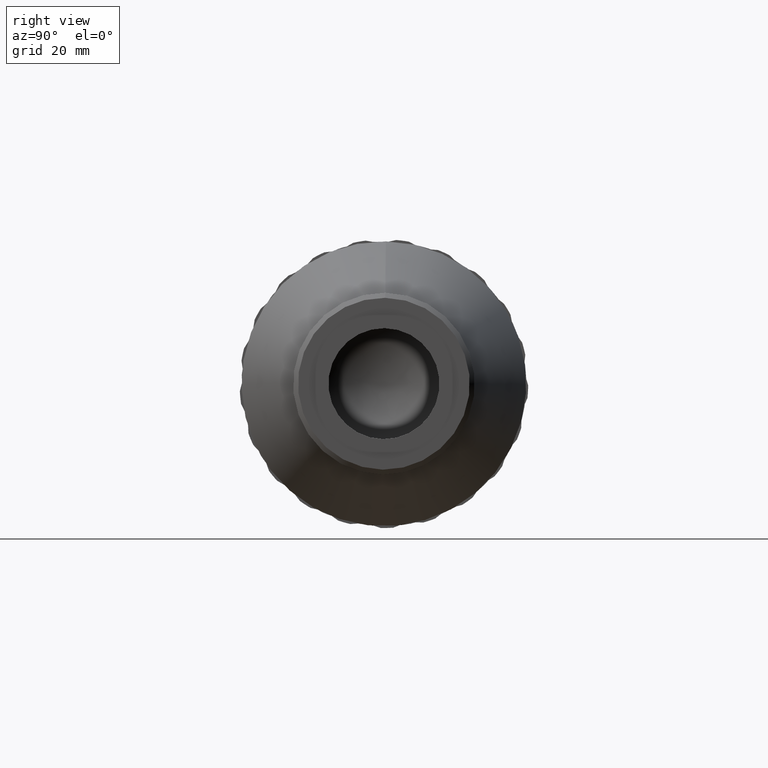
[diagram: clean part render]
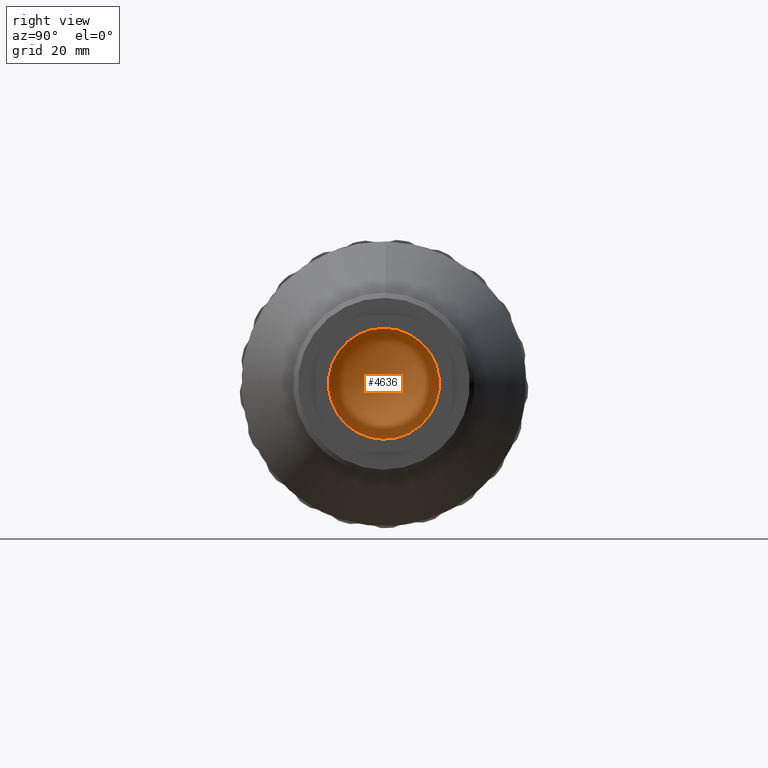
[diagram: same view with one face highlighted and labeled with its STEP entity id]
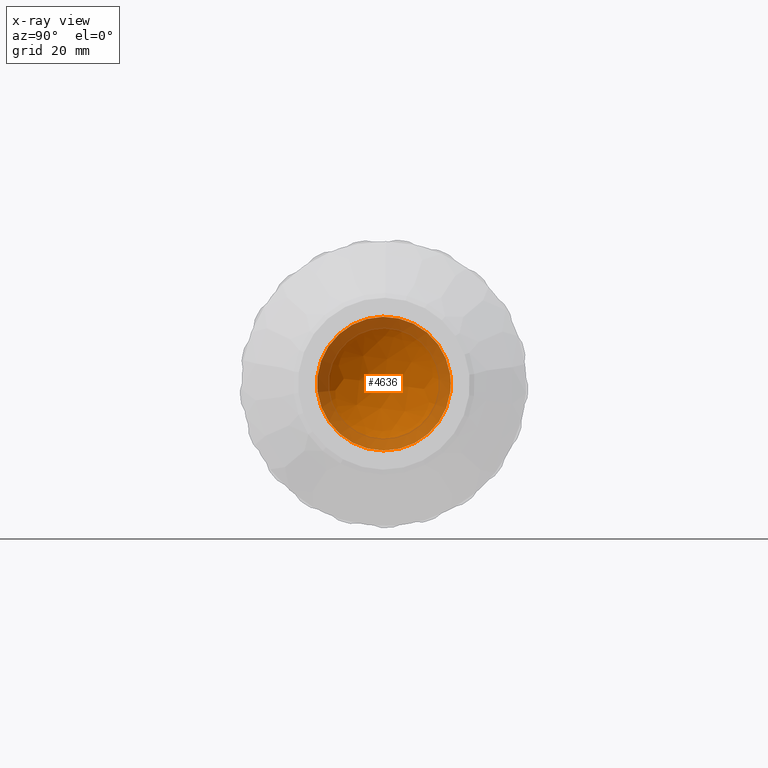
[diagram: x-ray of the same camera — body ghosted, the highlighted face saturated]
A machine part, right view. The second image highlights one B-rep face of the part: STEP entity #4636.
The next image is the same camera in x-ray: the body ghosted, the highlighted face saturated — about 31% of this face is hidden behind the body in this view.
In plain terms, the highlighted face is a freeform B-spline surface patch.
Its self-contained STEP definition (entity closure, byte-faithful):
#76 = CARTESIAN_POINT ( 'NONE',  ( 20.79694076628485888, 14.75551516856130085, 117.7459716523386248 ) ) ;
#118 = CARTESIAN_POINT ( 'NONE',  ( 24.75481877057790925, 19.28229249259254274, 141.1737036671693488 ) ) ;
#129 = CARTESIAN_POINT ( 'NONE',  ( 20.79694076628486243, 9.877274918261335301, 115.7512819956742618 ) ) ;
#150 = CARTESIAN_POINT ( 'NONE',  ( 20.79694076628505783, 4.608843262605512692, 115.7528891539403446 ) ) ;
#164 = CARTESIAN_POINT ( 'NONE',  ( 19.41052477261217035, -6.930980288724769345, 136.3244366917483319 ) ) ;
#175 = CARTESIAN_POINT ( 'NONE',  ( 20.79694076628487309, 19.15262240539266259, 122.6195330048044099 ) ) ;
#198 = CARTESIAN_POINT ( 'NONE',  ( 20.79694076628486243, 18.49510659127679446, 136.5176368601314323 ) ) ;
#219 = CARTESIAN_POINT ( 'NONE',  ( 20.79694076628486954, 20.77670692911026507, 128.9961268867075148 ) ) ;
#379 = ORIENTED_EDGE ( 'NONE', *, *, #4344, .F. ) ;
#398 = B_SPLINE_CURVE_WITH_KNOTS ( 'NONE', 3,
 ( #1236, #3767, #2254, #904, #3821, #504, #175, #2279, #1620, #3354, #477, #1161, #4183, #76, #2360, #1542, #3003, #878, #1186, #129, #4462, #4510, #805, #2643, #551, #150, #3329, #1589, #1208, #2693, #1513, #3738, #3027, #2718, #852, #2977, #1893, #1566, #2623, #4103, #3712, #4081, #828, #4159, #1948, #3051, #3078, #450, #4484, #2334, #3796, #526, #4540, #2667, #4128, #1971, #2308, #3429, #1264, #2788, #1306, #1371, #1286, #1643, #3170, #2809, #2065, #928, #2767, #4253, #4653, #1333, #3146, #1729, #641, #975, #1710, #1353, #4206, #4273, #598, #2451, #3456, #198, #4586, #2044, #2428, #2828, #2384, #3523, #1664, #3890, #3843, #219, #996, #580 ),
 .UNSPECIFIED., .T., .F.,
 ( 4, 2, 2, 2, 2, 2, 2, 2, 2, 1, 2, 2, 2, 2, 2, 2, 2, 2, 2, 2, 2, 2, 2, 2, 2, 2, 2, 1, 2, 2, 2, 2, 2, 2, 2, 2, 2, 2, 2, 2, 2, 2, 2, 2, 2, 2, 2, 2, 4 ),
 ( 0.000000000000000000, 0.002637650698647199619, 0.003956476047970759746, 0.005275301397294321175, 0.007912952095941441430, 0.009231777445264984644, 0.01055060279458852439, 0.01318825349323563684, 0.01450707884255919393, 0.01582590419188275102, 0.01714472954120631332, 0.01846355489052986867, 0.02110120558917698286, 0.02242003093850054168, 0.02373885628782409357, 0.02637650698647119041, 0.02769533233579473883, 0.02901415768511828724, 0.03165180838376538408, 0.03428945908241248092, 0.03560828443173604668, 0.03692710978105961939, 0.03956476047970666765, 0.04088358582903019178, 0.04220241117835371591, 0.04484006187700077112, 0.04615888722632426749, 0.04747771257564774999, 0.04879653792497123943, 0.05011536327429472193, 0.05275301397294169387, 0.05407183932226521800, 0.05539066467158872825, 0.05802831537023579733, 0.05934714071955933534, 0.06066596606888285947, 0.06330361676752992162, 0.06462244211685344575, 0.06594126746617698376, 0.06726009281550049401, 0.06857891816482403202, 0.07121656886347109416, 0.07385421956211814243, 0.07649187026076520457, 0.07781069561008872870, 0.07912952095941226671, 0.08044834630873580472, 0.08176717165805934273, 0.08440482235670647426 ),
 .UNSPECIFIED. ) ;
#425 = CARTESIAN_POINT ( 'NONE',  ( 19.46576404067022992, 1.353010963564248437, 115.9441353962994299 ) ) ;
#450 = CARTESIAN_POINT ( 'NONE',  ( 20.79694076628484822, -6.193888062391005533, 130.3330520481841859 ) ) ;
#477 = CARTESIAN_POINT ( 'NONE',  ( 20.79694076628488730, 16.79209667321011779, 119.4424921069787473 ) ) ;
#504 = CARTESIAN_POINT ( 'NONE',  ( 20.79694076628487309, 19.35755388703691793, 123.0175744042112740 ) ) ;
#518 = CARTESIAN_POINT ( 'NONE',  ( 24.78678929296835065, -1.235934089335831487, 143.8942924220079078 ) ) ;
#526 = CARTESIAN_POINT ( 'NONE',  ( 20.79694076628484822, -5.228883208599590660, 134.1758041819597054 ) ) ;
#551 = CARTESIAN_POINT ( 'NONE',  ( 20.79694076628485178, 5.043559182267078000, 115.6738203116634480 ) ) ;
#580 = CARTESIAN_POINT ( 'NONE',  ( 20.79694076628486954, 20.63022478752365529, 127.2255150154504264 ) ) ;
#598 = CARTESIAN_POINT ( 'NONE',  ( 20.79694076628485533, 15.48166554364380332, 139.7342001127206288 ) ) ;
#641 = CARTESIAN_POINT ( 'NONE',  ( 20.79694076628485888, 11.16905811599129983, 141.9253065360430810 ) ) ;
#805 = CARTESIAN_POINT ( 'NONE',  ( 20.79694076628486243, 7.232401388066420189, 115.4708091306396938 ) ) ;
#828 = CARTESIAN_POINT ( 'NONE',  ( 20.79694076628484822, -6.023594070084005381, 126.3701744166056073 ) ) ;
#852 = CARTESIAN_POINT ( 'NONE',  ( 20.79694076628485533, -2.321483810160088090, 119.4364648428386175 ) ) ;
#869 = CARTESIAN_POINT ( 'NONE',  ( 11.61006013441176599, 2.008351635597059648, 135.1391370844957294 ) ) ;
#878 = CARTESIAN_POINT ( 'NONE',  ( 20.79694076628486243, 11.57612093899022909, 116.2051958849225457 ) ) ;
#904 = CARTESIAN_POINT ( 'NONE',  ( 20.79694076628485888, 19.88593555988373751, 124.2345321418464863 ) ) ;
#928 = CARTESIAN_POINT ( 'NONE',  ( 20.79694076628484822, 5.489909209416071079, 142.3924727734532212 ) ) ;
#975 = CARTESIAN_POINT ( 'NONE',  ( 20.79694076628485178, 12.00175031855894581, 141.6427461249409987 ) ) ;
#996 = CARTESIAN_POINT ( 'NONE',  ( 20.79694076628486599, 20.74745590996170463, 128.1096525861728708 ) ) ;
#1161 = CARTESIAN_POINT ( 'NONE',  ( 20.79694076628488375, 16.14193106207103412, 118.8346388467990238 ) ) ;
#1186 = CARTESIAN_POINT ( 'NONE',  ( 20.79694076628485888, 10.73763651590352630, 115.9368164394431489 ) ) ;
#1208 = CARTESIAN_POINT ( 'NONE',  ( 20.79694076628485533, 2.061039106694383172, 116.5047518919475351 ) ) ;
#1236 = CARTESIAN_POINT ( 'NONE',  ( 20.79694076628486954, 20.63022478752365529, 127.2255150154504264 ) ) ;
#1264 = CARTESIAN_POINT ( 'NONE',  ( 20.79694076628484112, -1.669662829999003284, 139.1740588115333992 ) ) ;
#1286 = CARTESIAN_POINT ( 'NONE',  ( 20.79694076628484467, 0.8855284167640329329, 140.9152064780705018 ) ) ;
#1306 = CARTESIAN_POINT ( 'NONE',  ( 20.79694076628485533, -0.2593007676944905637, 140.2293127000899915 ) ) ;
#1333 = CARTESIAN_POINT ( 'NONE',  ( 20.79694076628489086, 9.449449290971388749, 142.3266226868981335 ) ) ;
#1353 = CARTESIAN_POINT ( 'NONE',  ( 20.79694076628485888, 13.21771981452223343, 141.1161266060803428 ) ) ;
#1371 = CARTESIAN_POINT ( 'NONE',  ( 20.79694076628484112, 0.4951696132165468445, 140.6985185845734065 ) ) ;
#1457 =( BOUNDED_SURFACE ( )  B_SPLINE_SURFACE ( 3, 3, ( 
 ( #118, #3042, #1557, #518 ),
 ( #2635, #1579, #869, #164 ),
 ( #2324, #4428, #1609, #4095 ),
 ( #3067, #4454, #425, #4530 ) ),
 .UNSPECIFIED., .F., .F., .T. ) 
 B_SPLINE_SURFACE_WITH_KNOTS ( ( 4, 4 ),
 ( 4, 4 ),
 ( 0.000000000000000000, 1.000000000000000000 ),
 ( 0.000000000000000000, 1.000000000000000000 ),
 .UNSPECIFIED. ) 
 GEOMETRIC_REPRESENTATION_ITEM ( )  RATIONAL_B_SPLINE_SURFACE ( (
 ( 1.000000000000000000, 0.8382074757166021461, 0.8382074757166021461, 1.000000000000000000),
 ( 0.8375216939864565946, 0.7020169449742803547, 0.7020169449742803547, 0.8375216939864565946),
 ( 0.8375216939864565946, 0.7020169449742803547, 0.7020169449742803547, 0.8375216939864565946),
 ( 1.000000000000000000, 0.8382074757166021461, 0.8382074757166021461, 1.000000000000000000) ) ) 
 REPRESENTATION_ITEM ( '' )  SURFACE ( )  );
#1513 = CARTESIAN_POINT ( 'NONE',  ( 20.79694076628485888, 0.1117135075511125619, 117.5314291652534138 ) ) ;
#1542 = CARTESIAN_POINT ( 'NONE',  ( 20.79694076628485533, 12.81384972651210674, 116.6930460573688890 ) ) ;
#1557 = CARTESIAN_POINT ( 'NONE',  ( 19.40188519730560301, 4.935165623882642905, 143.0760431245975610 ) ) ;
#1566 = CARTESIAN_POINT ( 'NONE',  ( 20.79694076628486243, -4.473665655806084551, 122.2441832581430248 ) ) ;
#1579 = CARTESIAN_POINT ( 'NONE',  ( 11.59164311069178943, 13.82813553015840036, 133.5719075278981052 ) ) ;
#1589 = CARTESIAN_POINT ( 'NONE',  ( 20.79694076628486243, 3.314395565721394821, 116.0780572511272055 ) ) ;
#1609 = CARTESIAN_POINT ( 'NONE',  ( 11.63548389112289705, 0.5826553676520559444, 124.3406475555638764 ) ) ;
#1620 = CARTESIAN_POINT ( 'NONE',  ( 20.79694076628486599, 17.97466833153324117, 120.7566349443212204 ) ) ;
#1643 = CARTESIAN_POINT ( 'NONE',  ( 20.79694076628483757, 2.073872952620090970, 141.5006006312583793 ) ) ;
#1664 = CARTESIAN_POINT ( 'NONE',  ( 20.79694076628489086, 20.49374634487269020, 131.6415369935076853 ) ) ;
#1710 = CARTESIAN_POINT ( 'NONE',  ( 20.79694076628487309, 12.41153324973633332, 141.4810673788431075 ) ) ;
#1729 = CARTESIAN_POINT ( 'NONE',  ( 20.79694076628485178, 10.74614854784226914, 142.0461872787116704 ) ) ;
#1893 = CARTESIAN_POINT ( 'NONE',  ( 20.79694076628484112, -4.008411235683992935, 121.4932297752013142 ) ) ;
#1948 = CARTESIAN_POINT ( 'NONE',  ( 20.79694076628484822, -6.252603842857271665, 128.5578363046455763 ) ) ;
#1971 = CARTESIAN_POINT ( 'NONE',  ( 20.79694076628484822, -3.469731864495398721, 137.2212435631586231 ) ) ;
#2044 = CARTESIAN_POINT ( 'NONE',  ( 20.79694076628486243, 19.54861340367337874, 134.5790149085318035 ) ) ;
#2065 = CARTESIAN_POINT ( 'NONE',  ( 20.79694076628484822, 4.614158524740160416, 142.2481402079963573 ) ) ;
#2254 = CARTESIAN_POINT ( 'NONE',  ( 20.79694076628488375, 20.31096701834394125, 125.4835175320107084 ) ) ;
#2279 = CARTESIAN_POINT ( 'NONE',  ( 20.79694076628487664, 18.48765196632125551, 121.4708083793154572 ) ) ;
#2308 = CARTESIAN_POINT ( 'NONE',  ( 20.79694076628483401, -3.192633137259108356, 137.5705482871472611 ) ) ;
#2324 = CARTESIAN_POINT ( 'NONE',  ( 19.38180178862758396, 21.34461777939897331, 121.5877409512704190 ) ) ;
#2334 = CARTESIAN_POINT ( 'NONE',  ( 20.79694076628483757, -5.821192816554813909, 132.4999593474522612 ) ) ;
#2360 = CARTESIAN_POINT ( 'NONE',  ( 20.79694076628484822, 14.00831091060935130, 117.2813230312762869 ) ) ;
#2384 = CARTESIAN_POINT ( 'NONE',  ( 20.79694076628486599, 20.17294937891380968, 132.9207533925445546 ) ) ;
#2428 = CARTESIAN_POINT ( 'NONE',  ( 20.79694076628488020, 19.72671874409325099, 134.1682881714114615 ) ) ;
#2451 = CARTESIAN_POINT ( 'NONE',  ( 20.79694076628486954, 16.80750705304152604, 138.5723777078727608 ) ) ;
#2623 = CARTESIAN_POINT ( 'NONE',  ( 20.79694076628484112, -5.056719459173923070, 123.4274693835296972 ) ) ;
#2635 = CARTESIAN_POINT ( 'NONE',  ( 19.36421291172457160, 22.79131337660325229, 132.3834461002358296 ) ) ;
#2643 = CARTESIAN_POINT ( 'NONE',  ( 20.79694076628484822, 6.352810689430802960, 115.5009290962256046 ) ) ;
#2667 = CARTESIAN_POINT ( 'NONE',  ( 20.79694076628484822, -4.460578042558582368, 135.7641094296489825 ) ) ;
#2693 = CARTESIAN_POINT ( 'NONE',  ( 20.79694076628488375, 1.260295869683557557, 116.8679305075963555 ) ) ;
#2718 = CARTESIAN_POINT ( 'NONE',  ( 20.79694076628485178, -1.329958337438126970, 118.5657695155586708 ) ) ;
#2767 = CARTESIAN_POINT ( 'NONE',  ( 20.79694076628485178, 5.928359209575498667, 142.4426114318476664 ) ) ;
#2788 = CARTESIAN_POINT ( 'NONE',  ( 20.79694076628485178, -0.6222834560162395778, 139.9778167315970734 ) ) ;
#2808 = VERTEX_POINT ( 'NONE', #3168 ) ;
#2809 = CARTESIAN_POINT ( 'NONE',  ( 20.79694076628485178, 4.177142492792307316, 142.1536706794023530 ) ) ;
#2828 = CARTESIAN_POINT ( 'NONE',  ( 20.79694076628488375, 20.03831710592936588, 133.3401624971141359 ) ) ;
#2977 = CARTESIAN_POINT ( 'NONE',  ( 20.79694076628485178, -2.924185883977088007, 120.0790343088089003 ) ) ;
#3003 = CARTESIAN_POINT ( 'NONE',  ( 20.79694076628485888, 12.40349895713864825, 116.5156333271408329 ) ) ;
#3027 = CARTESIAN_POINT ( 'NONE',  ( 20.79694076628485178, -0.9847636061696702914, 118.2911787211323116 ) ) ;
#3042 = CARTESIAN_POINT ( 'NONE',  ( 19.38917135126443725, 13.09473119539658192, 141.9941356678498039 ) ) ;
#3051 = CARTESIAN_POINT ( 'NONE',  ( 20.79694076628484822, -6.259991951583513625, 129.0017582981471378 ) ) ;
#3067 = CARTESIAN_POINT ( 'NONE',  ( 24.79901196851530898, 15.64737565083271242, 114.0487918747498810 ) ) ;
#3078 = CARTESIAN_POINT ( 'NONE',  ( 20.79694076628483757, -6.230495665855328546, 129.8921693743528465 ) ) ;
#3146 = CARTESIAN_POINT ( 'NONE',  ( 20.79694076628486243, 9.887074489385707210, 142.2467520461964909 ) ) ;
#3168 = CARTESIAN_POINT ( 'NONE',  ( 20.79694076628486954, 20.63022478752365885, 127.2255150154504548 ) ) ;
#3170 = CARTESIAN_POINT ( 'NONE',  ( 20.79694076628484467, 2.896752225743493003, 141.8102804281484168 ) ) ;
#3329 = CARTESIAN_POINT ( 'NONE',  ( 20.79694076628505428, 3.742917397524387901, 115.9552076674037835 ) ) ;
#3344 = FACE_OUTER_BOUND ( 'NONE', #4246, .T. ) ;
#3354 = CARTESIAN_POINT ( 'NONE',  ( 20.79694076628487664, 17.10162412254107167, 119.7621452636620631 ) ) ;
#3429 = CARTESIAN_POINT ( 'NONE',  ( 20.79694076628483757, -2.312889754230366357, 138.5729996835748068 ) ) ;
#3456 = CARTESIAN_POINT ( 'NONE',  ( 20.79694076628486243, 17.42221839862323307, 137.9162175042054059 ) ) ;
#3523 = CARTESIAN_POINT ( 'NONE',  ( 20.79694076628486243, 20.40066442945606795, 132.0714407496196259 ) ) ;
#3712 = CARTESIAN_POINT ( 'NONE',  ( 20.79694076628484467, -5.543883865341669548, 124.6606156514124280 ) ) ;
#3738 = CARTESIAN_POINT ( 'NONE',  ( 20.79694076628484467, -0.2642790737497078268, 117.7740486590627569 ) ) ;
#3767 = CARTESIAN_POINT ( 'NONE',  ( 20.79694076628487309, 20.51299366508560595, 126.3413774447279820 ) ) ;
#3796 = CARTESIAN_POINT ( 'NONE',  ( 20.79694076628483757, -5.393509712213604423, 133.7597482283115937 ) ) ;
#3821 = CARTESIAN_POINT ( 'NONE',  ( 20.79694076628487309, 19.72377530504635246, 123.8245512770388359 ) ) ;
#3843 = CARTESIAN_POINT ( 'NONE',  ( 20.79694076628487309, 20.68912673903572497, 130.3293297954904801 ) ) ;
#3890 = CARTESIAN_POINT ( 'NONE',  ( 20.79694076628488020, 20.63793774214646959, 130.7711282231869063 ) ) ;
#4081 = CARTESIAN_POINT ( 'NONE',  ( 20.79694076628485533, -5.680688876221368311, 125.0869833913650950 ) ) ;
#4095 = CARTESIAN_POINT ( 'NONE',  ( 19.42806685551019541, -8.347644159036745393, 125.5247495232772224 ) ) ;
#4103 = CARTESIAN_POINT ( 'NONE',  ( 20.79694076628484822, -5.232052901323132943, 123.8317868964277437 ) ) ;
#4128 = CARTESIAN_POINT ( 'NONE',  ( 20.79694076628485533, -3.983830194858820839, 136.5036841403020276 ) ) ;
#4159 = CARTESIAN_POINT ( 'NONE',  ( 20.79694076628485178, -6.166173745922955085, 127.2379447496005724 ) ) ;
#4183 = CARTESIAN_POINT ( 'NONE',  ( 20.79694076628487309, 15.80438362944155628, 118.5491068716067673 ) ) ;
#4206 = CARTESIAN_POINT ( 'NONE',  ( 20.79694076628485533, 13.61599764032454019, 140.9116200126846934 ) ) ;
#4246 = EDGE_LOOP ( 'NONE', ( #379 ) ) ;
#4253 = CARTESIAN_POINT ( 'NONE',  ( 20.79694076628485178, 7.245388851668853825, 142.5286438501920827 ) ) ;
#4273 = CARTESIAN_POINT ( 'NONE',  ( 20.79694076628486954, 14.76696447386333055, 140.2468072818356859 ) ) ;
#4344 = EDGE_CURVE ( 'NONE', #2808, #2808, #398, .T. ) ;
#4428 = CARTESIAN_POINT ( 'NONE',  ( 11.61708547616282594, 12.39049642476469693, 122.7750015446559217 ) ) ;
#4454 = CARTESIAN_POINT ( 'NONE',  ( 19.45309695034941200, 9.482569378725058229, 114.8662067011572674 ) ) ;
#4462 = CARTESIAN_POINT ( 'NONE',  ( 20.79694076628486243, 9.005825802970505833, 115.6077340258092789 ) ) ;
#4484 = CARTESIAN_POINT ( 'NONE',  ( 20.79694076628484822, -6.020647314988124776, 131.6431587202324636 ) ) ;
#4510 = CARTESIAN_POINT ( 'NONE',  ( 20.79694076628485888, 8.562199862375399206, 115.5568422476197270 ) ) ;
#4530 = CARTESIAN_POINT ( 'NONE',  ( 24.83086491792276718, -4.795394262755103831, 116.7593755464227456 ) ) ;
#4540 = CARTESIAN_POINT ( 'NONE',  ( 20.79694076628484822, -4.863501475498237525, 134.9810208037417851 ) ) ;
#4586 = CARTESIAN_POINT ( 'NONE',  ( 20.79694076628488020, 18.96010024156935003, 135.7710456777890045 ) ) ;
#4636 = ADVANCED_FACE ( 'NONE', ( #3344 ), #1457, .F. ) ;
#4653 = CARTESIAN_POINT ( 'NONE',  ( 20.79694076628489441, 8.125631868545413639, 142.5007775828816534 ) ) ;